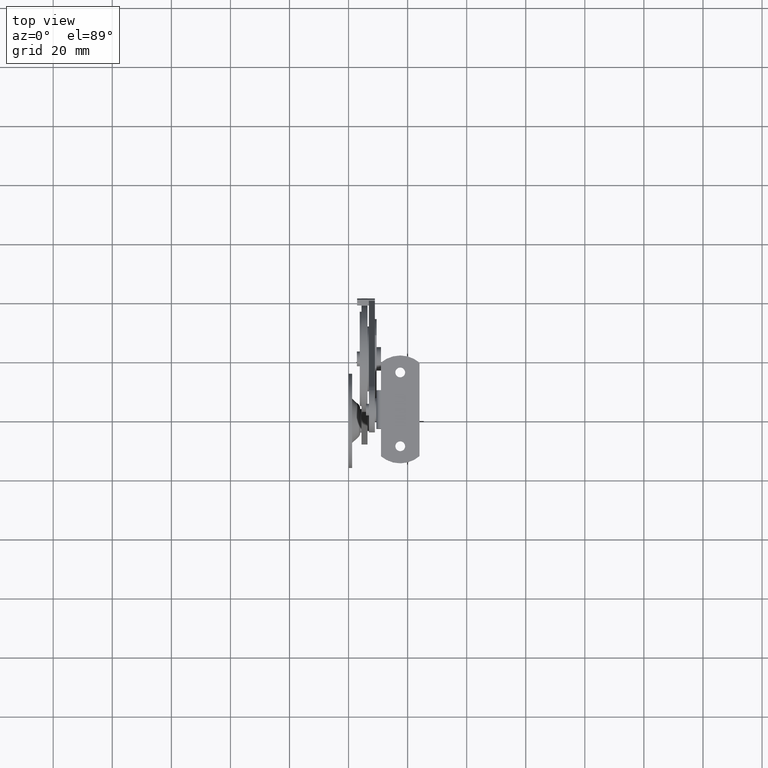
[diagram: clean part render]
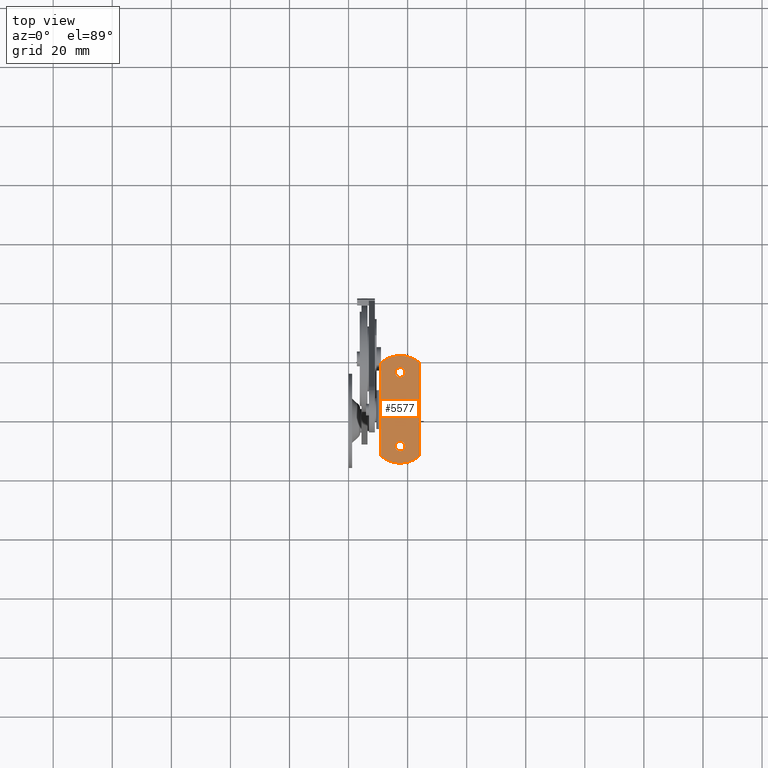
[diagram: same view with one face highlighted and labeled with its STEP entity id]
A machine part, top view. The second image highlights one B-rep face of the part: STEP entity #5577.
In plain terms, the highlighted face is a freeform B-spline surface patch.
Its self-contained STEP definition (entity closure, byte-faithful):
#4533=CARTESIAN_POINT('',(17.629457509885519,-10.855101399492611,115.598877000000200));
#4534=VERTEX_POINT('',#4533);
#4540=CARTESIAN_POINT('',(15.850000000000000,-12.500015000000021,115.598877000000200));
#4541=VERTEX_POINT('',#4540);
#4542=CARTESIAN_POINT('',(17.629457509885516,-10.855101399492616,115.598877000000160));
#4543=CARTESIAN_POINT('',(17.564828678506213,-10.850015000000019,115.598877000000200));
#4544=CARTESIAN_POINT('',(17.500000000000000,-10.850015000000020,115.598877000000200));
#4545=CARTESIAN_POINT('',(15.850000000000000,-10.850015000000022,115.598877000000210));
#4546=CARTESIAN_POINT('',(15.850000000000000,-12.500015000000021,115.598877000000200));
#4554=(BOUNDED_CURVE()B_SPLINE_CURVE(2,(#4542,#4543,#4544,#4545,#4546),.UNSPECIFIED.,.F.,.U.)B_SPLINE_CURVE_WITH_KNOTS((3,2,3),(0.736331300229545,0.750000000000000,1.0),.UNSPECIFIED.)CURVE()GEOMETRIC_REPRESENTATION_ITEM()RATIONAL_B_SPLINE_CURVE((0.969723355330322,0.983986122108947,1.0,0.707106781186548,1.0))REPRESENTATION_ITEM(''));
#4555=EDGE_CURVE('',#4534,#4541,#4554,.T.);
#4557=CARTESIAN_POINT('',(17.370542490114481,-14.144928600507431,115.598877000000200));
#4558=VERTEX_POINT('',#4557);
#4559=CARTESIAN_POINT('',(15.850000000000000,-12.500015000000021,115.598877000000200));
#4560=CARTESIAN_POINT('',(15.850000000000007,-14.025259307637311,115.598877000000200));
#4561=CARTESIAN_POINT('',(17.370542490114484,-14.144928600507425,115.598877000000160));
#4569=(BOUNDED_CURVE()B_SPLINE_CURVE(2,(#4559,#4560,#4561),.UNSPECIFIED.,.F.,.U.)B_SPLINE_CURVE_WITH_KNOTS((3,3),(0.0,0.236331300229545),.UNSPECIFIED.)CURVE()GEOMETRIC_REPRESENTATION_ITEM()RATIONAL_B_SPLINE_CURVE((1.0,0.723120659077601,0.969723355330322))REPRESENTATION_ITEM(''));
#4570=EDGE_CURVE('',#4541,#4558,#4569,.T.);
#4600=CARTESIAN_POINT('',(19.149999999999999,-12.500015000000021,115.598877000000200));
#4601=VERTEX_POINT('',#4600);
#4602=CARTESIAN_POINT('',(17.370542490114484,-14.144928600507425,115.598877000000160));
#4603=CARTESIAN_POINT('',(17.435171321493797,-14.150015000000025,115.598877000000200));
#4604=CARTESIAN_POINT('',(17.500000000000000,-14.150015000000019,115.598877000000200));
#4605=CARTESIAN_POINT('',(19.150000000000006,-14.150015000000019,115.598877000000210));
#4606=CARTESIAN_POINT('',(19.149999999999999,-12.500015000000021,115.598877000000200));
#4614=(BOUNDED_CURVE()B_SPLINE_CURVE(2,(#4602,#4603,#4604,#4605,#4606),.UNSPECIFIED.,.F.,.U.)B_SPLINE_CURVE_WITH_KNOTS((3,2,3),(0.236331300229545,0.250000000000000,0.500000000000000),.UNSPECIFIED.)CURVE()GEOMETRIC_REPRESENTATION_ITEM()RATIONAL_B_SPLINE_CURVE((0.969723355330322,0.983986122108947,1.0,0.707106781186548,1.0))REPRESENTATION_ITEM(''));
#4615=EDGE_CURVE('',#4558,#4601,#4614,.T.);
#4617=CARTESIAN_POINT('',(19.149999999999999,-12.500015000000021,115.598877000000200));
#4618=CARTESIAN_POINT('',(19.149999999999999,-10.974770692362736,115.598877000000210));
#4619=CARTESIAN_POINT('',(17.629457509885519,-10.855101399492620,115.598877000000200));
#4627=(BOUNDED_CURVE()B_SPLINE_CURVE(2,(#4617,#4618,#4619),.UNSPECIFIED.,.F.,.U.)B_SPLINE_CURVE_WITH_KNOTS((3,3),(0.500000000000000,0.736331300229544),.UNSPECIFIED.)CURVE()GEOMETRIC_REPRESENTATION_ITEM()RATIONAL_B_SPLINE_CURVE((1.0,0.723120659077602,0.969723355330320))REPRESENTATION_ITEM(''));
#4628=EDGE_CURVE('',#4601,#4534,#4627,.T.);
#4857=CARTESIAN_POINT('',(17.629457509885519,14.144898600507389,115.598877000000200));
#4858=VERTEX_POINT('',#4857);
#4864=CARTESIAN_POINT('',(15.850000000000000,12.499984999999979,115.598877000000200));
#4865=VERTEX_POINT('',#4864);
#4866=CARTESIAN_POINT('',(17.629457509885516,14.144898600507384,115.598877000000160));
#4867=CARTESIAN_POINT('',(17.564828678506213,14.149984999999987,115.598877000000200));
#4868=CARTESIAN_POINT('',(17.500000000000000,14.149984999999980,115.598877000000200));
#4869=CARTESIAN_POINT('',(15.850000000000000,14.149984999999987,115.598877000000210));
#4870=CARTESIAN_POINT('',(15.850000000000000,12.499984999999979,115.598877000000200));
#4878=(BOUNDED_CURVE()B_SPLINE_CURVE(2,(#4866,#4867,#4868,#4869,#4870),.UNSPECIFIED.,.F.,.U.)B_SPLINE_CURVE_WITH_KNOTS((3,2,3),(0.736331300229545,0.750000000000000,1.0),.UNSPECIFIED.)CURVE()GEOMETRIC_REPRESENTATION_ITEM()RATIONAL_B_SPLINE_CURVE((0.969723355330322,0.983986122108947,1.0,0.707106781186548,1.0))REPRESENTATION_ITEM(''));
#4879=EDGE_CURVE('',#4858,#4865,#4878,.T.);
#4881=CARTESIAN_POINT('',(17.370542490114481,10.855071399492580,115.598877000000200));
#4882=VERTEX_POINT('',#4881);
#4883=CARTESIAN_POINT('',(15.850000000000000,12.499984999999979,115.598877000000200));
#4884=CARTESIAN_POINT('',(15.850000000000007,10.974740692362689,115.598877000000200));
#4885=CARTESIAN_POINT('',(17.370542490114484,10.855071399492575,115.598877000000160));
#4893=(BOUNDED_CURVE()B_SPLINE_CURVE(2,(#4883,#4884,#4885),.UNSPECIFIED.,.F.,.U.)B_SPLINE_CURVE_WITH_KNOTS((3,3),(0.0,0.236331300229545),.UNSPECIFIED.)CURVE()GEOMETRIC_REPRESENTATION_ITEM()RATIONAL_B_SPLINE_CURVE((1.0,0.723120659077601,0.969723355330322))REPRESENTATION_ITEM(''));
#4894=EDGE_CURVE('',#4865,#4882,#4893,.T.);
#4924=CARTESIAN_POINT('',(19.149999999999999,12.499984999999979,115.598877000000200));
#4925=VERTEX_POINT('',#4924);
#4926=CARTESIAN_POINT('',(17.370542490114484,10.855071399492575,115.598877000000160));
#4927=CARTESIAN_POINT('',(17.435171321493797,10.849984999999981,115.598877000000200));
#4928=CARTESIAN_POINT('',(17.500000000000000,10.849984999999981,115.598877000000200));
#4929=CARTESIAN_POINT('',(19.150000000000006,10.849984999999982,115.598877000000210));
#4930=CARTESIAN_POINT('',(19.149999999999999,12.499984999999979,115.598877000000200));
#4938=(BOUNDED_CURVE()B_SPLINE_CURVE(2,(#4926,#4927,#4928,#4929,#4930),.UNSPECIFIED.,.F.,.U.)B_SPLINE_CURVE_WITH_KNOTS((3,2,3),(0.236331300229545,0.250000000000000,0.500000000000000),.UNSPECIFIED.)CURVE()GEOMETRIC_REPRESENTATION_ITEM()RATIONAL_B_SPLINE_CURVE((0.969723355330322,0.983986122108947,1.0,0.707106781186548,1.0))REPRESENTATION_ITEM(''));
#4939=EDGE_CURVE('',#4882,#4925,#4938,.T.);
#4941=CARTESIAN_POINT('',(19.149999999999999,12.499984999999979,115.598877000000200));
#4942=CARTESIAN_POINT('',(19.149999999999999,14.025229307637275,115.598877000000210));
#4943=CARTESIAN_POINT('',(17.629457509885519,14.144898600507391,115.598877000000200));
#4951=(BOUNDED_CURVE()B_SPLINE_CURVE(2,(#4941,#4942,#4943),.UNSPECIFIED.,.F.,.U.)B_SPLINE_CURVE_WITH_KNOTS((3,3),(0.500000000000000,0.736331300229544),.UNSPECIFIED.)CURVE()GEOMETRIC_REPRESENTATION_ITEM()RATIONAL_B_SPLINE_CURVE((1.0,0.723120659077602,0.969723355330320))REPRESENTATION_ITEM(''));
#4952=EDGE_CURVE('',#4925,#4858,#4951,.T.);
#5225=CARTESIAN_POINT('',(11.0,6.499985000000000,115.598877000000200));
#5226=VERTEX_POINT('',#5225);
#5251=CARTESIAN_POINT('',(11.0,-6.500014999999999,115.598877000000200));
#5252=VERTEX_POINT('',#5251);
#5268=CARTESIAN_POINT('',(11.0,-6.500014999999999,115.598877000000200));
#5269=CARTESIAN_POINT('',(11.0,6.499985000000000,115.598877000000200));
#5270=QUASI_UNIFORM_CURVE('',1,(#5268,#5269),.UNSPECIFIED.,.F.,.U.);
#5271=EDGE_CURVE('',#5252,#5226,#5270,.T.);
#5315=CARTESIAN_POINT('',(11.0,-15.849358000000001,115.598877000000200));
#5316=VERTEX_POINT('',#5315);
#5317=CARTESIAN_POINT('',(11.0,-6.500014999999999,115.598877000000200));
#5318=CARTESIAN_POINT('',(11.0,-15.849358000000001,115.598877000000200));
#5319=QUASI_UNIFORM_CURVE('',1,(#5317,#5318),.UNSPECIFIED.,.F.,.U.);
#5320=EDGE_CURVE('',#5252,#5316,#5319,.T.);
#5403=CARTESIAN_POINT('',(11.000001044290940,15.849327970006000,115.598877000000200));
#5404=VERTEX_POINT('',#5403);
#5405=CARTESIAN_POINT('',(11.000001044290940,15.849327970006000,115.598877000000200));
#5406=CARTESIAN_POINT('',(11.0,6.499985000000000,115.598877000000200));
#5407=QUASI_UNIFORM_CURVE('',1,(#5405,#5406),.UNSPECIFIED.,.F.,.U.);
#5408=EDGE_CURVE('',#5404,#5226,#5407,.T.);
#5440=CARTESIAN_POINT('',(24.0,15.849327000000001,115.598877000000200));
#5441=VERTEX_POINT('',#5440);
#5442=CARTESIAN_POINT('',(24.0,15.849327000000001,115.598877000000200));
#5443=CARTESIAN_POINT('',(17.500000936986524,21.409018153932216,115.598877000000200));
#5444=CARTESIAN_POINT('',(11.000001044290890,15.849327970006049,115.598877000000200));
#5452=(BOUNDED_CURVE()B_SPLINE_CURVE(2,(#5442,#5443,#5444),.UNSPECIFIED.,.F.,.U.)CURVE()GEOMETRIC_REPRESENTATION_ITEM()QUASI_UNIFORM_CURVE()RATIONAL_B_SPLINE_CURVE((1.0,0.759934250717481,1.0))REPRESENTATION_ITEM(''));
#5453=EDGE_CURVE('',#5441,#5404,#5452,.T.);
#5484=CARTESIAN_POINT('',(24.0,-15.849358000000001,115.598877000000200));
#5485=VERTEX_POINT('',#5484);
#5486=CARTESIAN_POINT('',(24.0,-15.849358000000001,115.598877000000200));
#5487=CARTESIAN_POINT('',(24.0,15.849327000000001,115.598877000000200));
#5488=QUASI_UNIFORM_CURVE('',1,(#5486,#5487),.UNSPECIFIED.,.F.,.U.);
#5489=EDGE_CURVE('',#5485,#5441,#5488,.T.);
#5521=CARTESIAN_POINT('',(11.0,-15.849358000000001,115.598877000000200));
#5522=CARTESIAN_POINT('',(17.499999999999993,-21.409048223770036,115.598877000000200));
#5523=CARTESIAN_POINT('',(24.0,-15.849358000000001,115.598877000000200));
#5531=(BOUNDED_CURVE()B_SPLINE_CURVE(2,(#5521,#5522,#5523),.UNSPECIFIED.,.F.,.U.)CURVE()GEOMETRIC_REPRESENTATION_ITEM()QUASI_UNIFORM_CURVE()RATIONAL_B_SPLINE_CURVE((1.0,0.759934246684349,1.0))REPRESENTATION_ITEM(''));
#5532=EDGE_CURVE('',#5316,#5485,#5531,.T.);
#5552=CARTESIAN_POINT('',(10.350650025196520,-20.073190246699120,115.598877000000200));
#5553=CARTESIAN_POINT('',(24.649350323490651,-20.073190246699120,115.598877000000200));
#5554=CARTESIAN_POINT('',(10.350650025196520,20.073160910166418,115.598877000000200));
#5555=CARTESIAN_POINT('',(24.649350323490651,20.073160910166418,115.598877000000200));
#5556=B_SPLINE_SURFACE_WITH_KNOTS('',1,1,((#5552,#5554),(#5553,#5555)),.UNSPECIFIED.,.F.,.F.,.U.,(2,2),(2,2),(0.0,14.298700298294129),(0.0,40.146351156865542),.UNSPECIFIED.);
#5557=ORIENTED_EDGE('',*,*,#5320,.T.);
#5558=ORIENTED_EDGE('',*,*,#5532,.T.);
#5559=ORIENTED_EDGE('',*,*,#5489,.T.);
#5560=ORIENTED_EDGE('',*,*,#5453,.T.);
#5561=ORIENTED_EDGE('',*,*,#5408,.T.);
#5562=ORIENTED_EDGE('',*,*,#5271,.F.);
#5563=EDGE_LOOP('',(#5557,#5558,#5559,#5560,#5561,#5562));
#5564=FACE_OUTER_BOUND('',#5563,.T.);
#5565=ORIENTED_EDGE('',*,*,#4952,.F.);
#5566=ORIENTED_EDGE('',*,*,#4939,.F.);
#5567=ORIENTED_EDGE('',*,*,#4894,.F.);
#5568=ORIENTED_EDGE('',*,*,#4879,.F.);
#5569=EDGE_LOOP('',(#5565,#5566,#5567,#5568));
#5570=FACE_BOUND('',#5569,.T.);
#5571=ORIENTED_EDGE('',*,*,#4628,.F.);
#5572=ORIENTED_EDGE('',*,*,#4615,.F.);
#5573=ORIENTED_EDGE('',*,*,#4570,.F.);
#5574=ORIENTED_EDGE('',*,*,#4555,.F.);
#5575=EDGE_LOOP('',(#5571,#5572,#5573,#5574));
#5576=FACE_BOUND('',#5575,.T.);
#5577=ADVANCED_FACE('',(#5564,#5570,#5576),#5556,.T.);